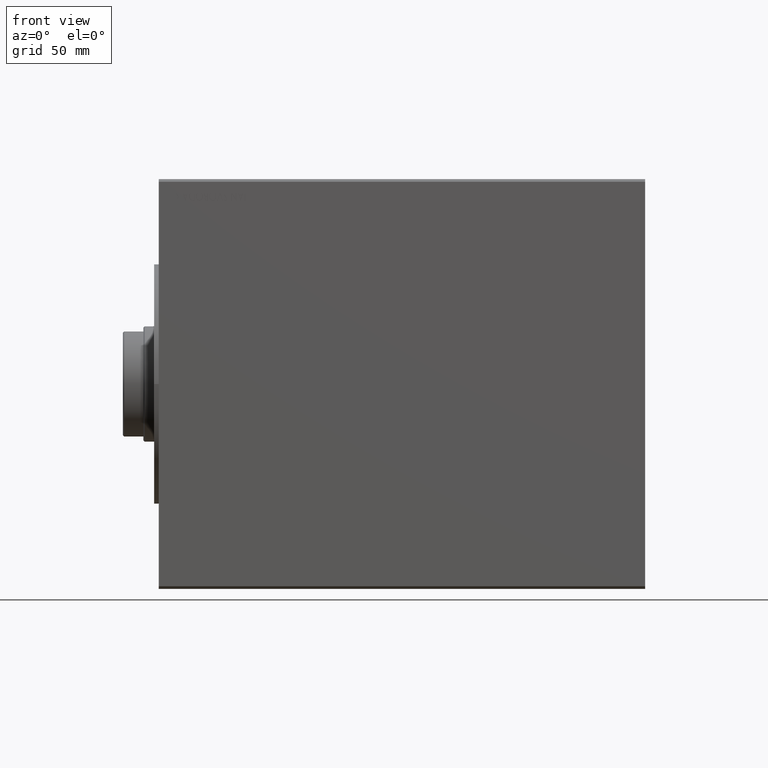
[diagram: clean part render]
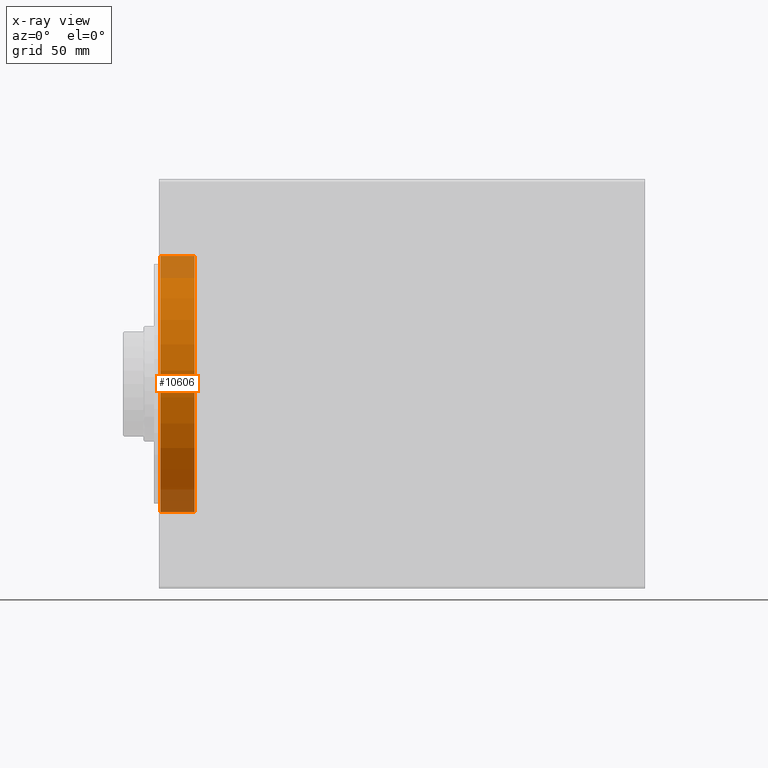
[diagram: x-ray — body ghosted, one internal face saturated and labeled with its STEP entity id]
A machine part, front view, then the same camera in x-ray: the body is ghosted and one INTERNAL B-rep face — a face not visible from any outside direction — is saturated and labeled: STEP entity #10606.
In plain terms, the highlighted cylindrical surface (partial cylindrical patch) has radius 50 mm, axis along (-1, -0, -0).
Its self-contained STEP definition (entity closure, byte-faithful):
#3942 = VERTEX_POINT ( 'NONE', #41987 ) ;
#4403 = EDGE_CURVE ( 'NONE', #14544, #11025, #38710, .T. ) ;
#5025 = ORIENTED_EDGE ( 'NONE', *, *, #4403, .T. ) ;
#5846 = FACE_OUTER_BOUND ( 'NONE', #37026, .T. ) ;
#6064 = CYLINDRICAL_SURFACE ( 'NONE', #13352, 50.00000000000000000 ) ;
#7751 = DIRECTION ( 'NONE',  ( -1.000000000000000000, 0.000000000000000000, 0.000000000000000000 ) ) ;
#7982 = CARTESIAN_POINT ( 'NONE',  ( 0.6999999999999992895, 6.123233995736766085E-15, -50.00000000000000000 ) ) ;
#8579 = VECTOR ( 'NONE', #29498, 1000.000000000000000 ) ;
#10606 = ADVANCED_FACE ( 'NONE', ( #5846 ), #6064, .F. ) ;
#11025 = VERTEX_POINT ( 'NONE', #7982 ) ;
#12307 = CARTESIAN_POINT ( 'NONE',  ( 14.00000000000000000, 0.000000000000000000, 0.000000000000000000 ) ) ;
#13352 = AXIS2_PLACEMENT_3D ( 'NONE', #12307, #36083, #19203 ) ;
#14202 = CIRCLE ( 'NONE', #40462, 50.00000000000000000 ) ;
#14544 = VERTEX_POINT ( 'NONE', #18002 ) ;
#14680 = VERTEX_POINT ( 'NONE', #40212 ) ;
#15137 = DIRECTION ( 'NONE',  ( -1.000000000000000000, -0.000000000000000000, -0.000000000000000000 ) ) ;
#15648 = EDGE_CURVE ( 'NONE', #14544, #3942, #14202, .T. ) ;
#18002 = CARTESIAN_POINT ( 'NONE',  ( 14.00000000000000000, 6.123233995736766085E-15, -50.00000000000000000 ) ) ;
#19203 = DIRECTION ( 'NONE',  ( 0.000000000000000000, 0.000000000000000000, 1.000000000000000000 ) ) ;
#19550 = EDGE_CURVE ( 'NONE', #11025, #14680, #41896, .T. ) ;
#21133 = CARTESIAN_POINT ( 'NONE',  ( 14.00000000000000000, 0.000000000000000000, 0.000000000000000000 ) ) ;
#21310 = ORIENTED_EDGE ( 'NONE', *, *, #15648, .F. ) ;
#21320 = CARTESIAN_POINT ( 'NONE',  ( 0.6999999999999992895, 0.000000000000000000, 0.000000000000000000 ) ) ;
#22202 = EDGE_CURVE ( 'NONE', #3942, #14680, #39730, .T. ) ;
#24687 = VECTOR ( 'NONE', #15137, 1000.000000000000000 ) ;
#29116 = DIRECTION ( 'NONE',  ( 0.000000000000000000, 0.000000000000000000, 1.000000000000000000 ) ) ;
#29498 = DIRECTION ( 'NONE',  ( -1.000000000000000000, -0.000000000000000000, -0.000000000000000000 ) ) ;
#30405 = ORIENTED_EDGE ( 'NONE', *, *, #22202, .F. ) ;
#34669 = DIRECTION ( 'NONE',  ( -1.000000000000000000, 0.000000000000000000, 0.000000000000000000 ) ) ;
#34908 = ORIENTED_EDGE ( 'NONE', *, *, #19550, .T. ) ;
#35303 = DIRECTION ( 'NONE',  ( 0.000000000000000000, 0.000000000000000000, -1.000000000000000000 ) ) ;
#36083 = DIRECTION ( 'NONE',  ( -1.000000000000000000, -0.000000000000000000, -0.000000000000000000 ) ) ;
#37026 = EDGE_LOOP ( 'NONE', ( #21310, #5025, #34908, #30405 ) ) ;
#38428 = AXIS2_PLACEMENT_3D ( 'NONE', #21320, #7751, #35303 ) ;
#38710 = LINE ( 'NONE', #39585, #24687 ) ;
#39585 = CARTESIAN_POINT ( 'NONE',  ( 14.00000000000000000, 6.123233995736766085E-15, -50.00000000000000000 ) ) ;
#39730 = LINE ( 'NONE', #39947, #8579 ) ;
#39947 = CARTESIAN_POINT ( 'NONE',  ( 14.00000000000000000, 0.000000000000000000, 50.00000000000000000 ) ) ;
#40212 = CARTESIAN_POINT ( 'NONE',  ( 0.6999999999999992895, 0.000000000000000000, 50.00000000000000000 ) ) ;
#40462 = AXIS2_PLACEMENT_3D ( 'NONE', #21133, #34669, #29116 ) ;
#41896 = CIRCLE ( 'NONE', #38428, 50.00000000000000000 ) ;
#41987 = CARTESIAN_POINT ( 'NONE',  ( 14.00000000000000000, 0.000000000000000000, 50.00000000000000000 ) ) ;